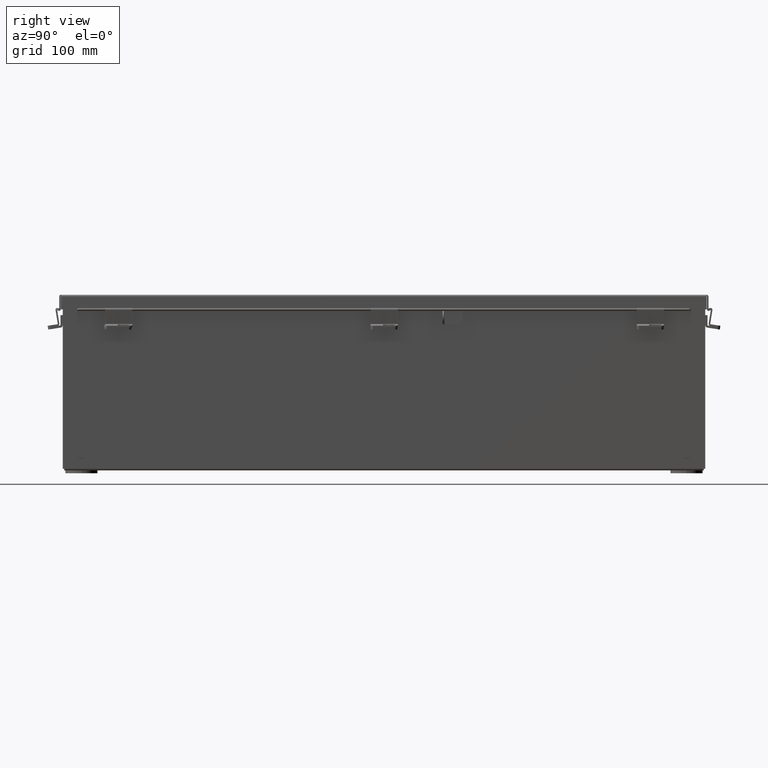
[diagram: clean part render]
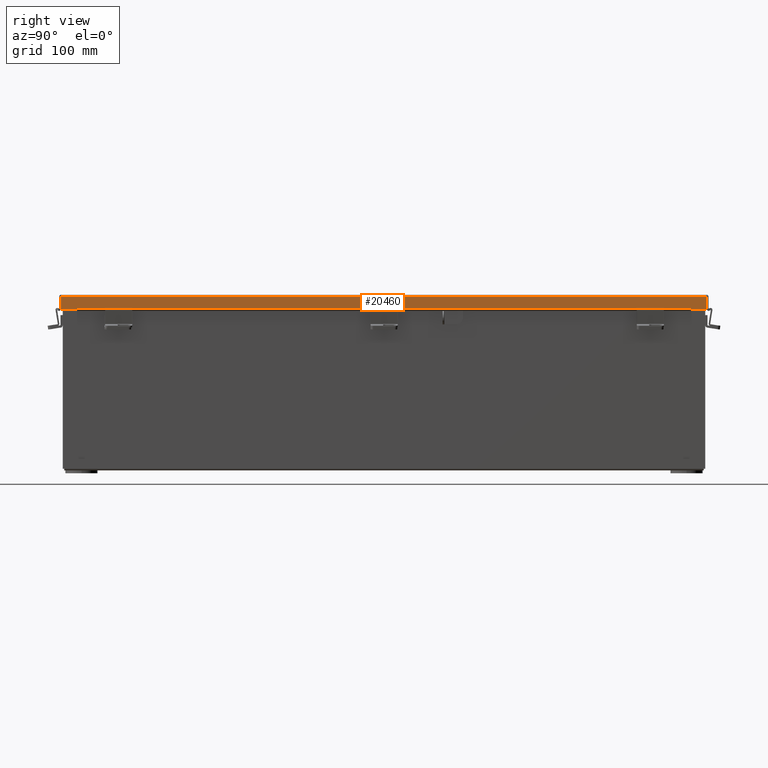
[diagram: same view with one face highlighted and labeled with its STEP entity id]
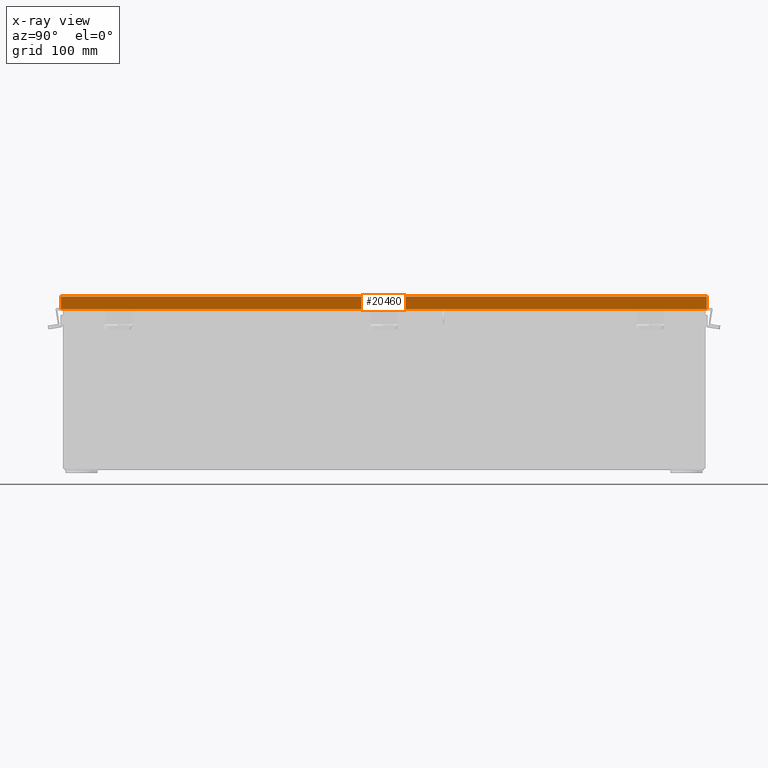
[diagram: x-ray of the same camera — body ghosted, the highlighted face saturated]
A machine part, right view. The second image highlights one B-rep face of the part: STEP entity #20460.
The next image is the same camera in x-ray: the body ghosted, the highlighted face saturated — about 0% of this face is hidden behind the body in this view.
In plain terms, the highlighted planar face has unit normal (-1, 0, -0).
Its self-contained STEP definition (entity closure, byte-faithful):
#557 = VERTEX_POINT ( 'NONE', #8641 ) ;
#665 = CARTESIAN_POINT ( 'NONE',  ( -4.156250000000025800, 15.15624999999997200, 0.01299999999999901400 ) ) ;
#748 = LINE ( 'NONE', #19440, #1879 ) ;
#1879 = VECTOR ( 'NONE', #12307, 39.37007874015748100 ) ;
#1965 = ORIENTED_EDGE ( 'NONE', *, *, #13209, .F. ) ;
#2416 = VECTOR ( 'NONE', #12020, 39.37007874015748100 ) ;
#2495 = DIRECTION ( 'NONE',  ( 1.752481305030150000E-013, -1.401985044024113200E-013, -1.000000000000000000 ) ) ;
#2799 = VERTEX_POINT ( 'NONE', #21058 ) ;
#2997 = DIRECTION ( 'NONE',  ( 1.000000000000000000, 1.232560026910515500E-029, 3.569293475308526100E-015 ) ) ;
#3274 = LINE ( 'NONE', #16144, #2416 ) ;
#3525 = ORIENTED_EDGE ( 'NONE', *, *, #13246, .T. ) ;
#3533 = CARTESIAN_POINT ( 'NONE',  ( -4.156250000000027500, -14.32447893218816200, 0.5967115427318782100 ) ) ;
#4991 = DIRECTION ( 'NONE',  ( 3.569293475308526100E-015, -6.034785924940716800E-029, -1.000000000000000000 ) ) ;
#5323 = CARTESIAN_POINT ( 'NONE',  ( -4.156250000000025800, -15.07447893218816000, -1.529834876451987200E-014 ) ) ;
#5588 = DIRECTION ( 'NONE',  ( -7.009925220120189700E-014, 6.034785924940715600E-029, 1.000000000000000000 ) ) ;
#6134 = VERTEX_POINT ( 'NONE', #18002 ) ;
#7750 = LINE ( 'NONE', #8148, #17610 ) ;
#8035 = ORIENTED_EDGE ( 'NONE', *, *, #13280, .F. ) ;
#8148 = CARTESIAN_POINT ( 'NONE',  ( -4.156250000000026600, 14.32447893218810500, 0.5967115427318793200 ) ) ;
#8554 = ORIENTED_EDGE ( 'NONE', *, *, #13520, .F. ) ;
#8641 = CARTESIAN_POINT ( 'NONE',  ( -4.156250000000027500, -14.32447893218816200, 0.6122999999999994000 ) ) ;
#8775 = LINE ( 'NONE', #23952, #23357 ) ;
#8957 = VERTEX_POINT ( 'NONE', #22025 ) ;
#10872 = CARTESIAN_POINT ( 'NONE',  ( -4.156250000000029300, 14.32447893218810500, 0.6122999999999994000 ) ) ;
#11502 = DIRECTION ( 'NONE',  ( -1.235011063668327800E-029, -1.000000000000000000, -6.034785924940740300E-029 ) ) ;
#11777 = PLANE ( 'NONE',  #19795 ) ;
#11873 = EDGE_LOOP ( 'NONE', ( #1965, #3525, #8035, #18031, #24731, #22885, #22307, #8554 ) ) ;
#12020 = DIRECTION ( 'NONE',  ( 1.235011063668327800E-029, 1.000000000000000000, 6.034785924940740300E-029 ) ) ;
#12307 = DIRECTION ( 'NONE',  ( -3.569293475308526100E-015, 6.034785924940715600E-029, 1.000000000000000000 ) ) ;
#13209 = EDGE_CURVE ( 'NONE', #23282, #15135, #24637, .T. ) ;
#13246 = EDGE_CURVE ( 'NONE', #23282, #6134, #3274, .T. ) ;
#13280 = EDGE_CURVE ( 'NONE', #2799, #6134, #748, .T. ) ;
#13316 = EDGE_CURVE ( 'NONE', #13647, #2799, #24766, .T. ) ;
#13324 = EDGE_CURVE ( 'NONE', #13647, #8957, #24175, .T. ) ;
#13358 = EDGE_CURVE ( 'NONE', #8957, #557, #8775, .T. ) ;
#13436 = EDGE_CURVE ( 'NONE', #17625, #557, #15217, .T. ) ;
#13520 = EDGE_CURVE ( 'NONE', #15135, #17625, #7750, .T. ) ;
#13647 = VERTEX_POINT ( 'NONE', #24333 ) ;
#13955 = CARTESIAN_POINT ( 'NONE',  ( -4.156250000000026600, -14.32447893218816200, 0.5967115427318782100 ) ) ;
#15135 = VERTEX_POINT ( 'NONE', #21879 ) ;
#15217 = LINE ( 'NONE', #13955, #19748 ) ;
#15284 = DIRECTION ( 'NONE',  ( -3.569293475308526100E-015, 6.034785924940715600E-029, 1.000000000000000000 ) ) ;
#16144 = CARTESIAN_POINT ( 'NONE',  ( -4.156250000000027500, 0.0000000000000000000, 0.6123000000000005100 ) ) ;
#16759 = VECTOR ( 'NONE', #22715, 39.37007874015748100 ) ;
#17290 = FACE_OUTER_BOUND ( 'NONE', #11873, .T. ) ;
#17610 = VECTOR ( 'NONE', #11502, 39.37007874015748100 ) ;
#17625 = VERTEX_POINT ( 'NONE', #3533 ) ;
#18002 = CARTESIAN_POINT ( 'NONE',  ( -4.156250000000027500, 15.07447893218810500, 0.6122999999999994000 ) ) ;
#18031 = ORIENTED_EDGE ( 'NONE', *, *, #13316, .F. ) ;
#18796 = CARTESIAN_POINT ( 'NONE',  ( -4.156250000000027500, 14.32447893218810500, 0.6122999999999994000 ) ) ;
#19440 = CARTESIAN_POINT ( 'NONE',  ( -4.156250000000025800, 15.07447893218810500, -1.092739197465705300E-015 ) ) ;
#19451 = VECTOR ( 'NONE', #2495, 39.37007874015748100 ) ;
#19748 = VECTOR ( 'NONE', #5588, 39.37007874015748100 ) ;
#19795 = AXIS2_PLACEMENT_3D ( 'NONE', #20969, #2997, #4991 ) ;
#20460 = ADVANCED_FACE ( 'NONE', ( #17290 ), #11777, .F. ) ;
#20969 = CARTESIAN_POINT ( 'NONE',  ( -4.156250000000025800, 0.0000000000000000000, -1.529834876451987200E-014 ) ) ;
#21058 = CARTESIAN_POINT ( 'NONE',  ( -4.156250000000025800, 15.07447893218810500, 0.01299999999999901400 ) ) ;
#21879 = CARTESIAN_POINT ( 'NONE',  ( -4.156250000000027500, 14.32447893218810400, 0.5967115427318793200 ) ) ;
#22025 = CARTESIAN_POINT ( 'NONE',  ( -4.156250000000027500, -15.07447893218816200, 0.6122999999999994000 ) ) ;
#22307 = ORIENTED_EDGE ( 'NONE', *, *, #13436, .F. ) ;
#22715 = DIRECTION ( 'NONE',  ( 1.223616637389996300E-029, 1.000000000000000000, 1.802456408196888900E-017 ) ) ;
#22885 = ORIENTED_EDGE ( 'NONE', *, *, #13358, .T. ) ;
#23282 = VERTEX_POINT ( 'NONE', #18796 ) ;
#23357 = VECTOR ( 'NONE', #24014, 39.37007874015748100 ) ;
#23550 = VECTOR ( 'NONE', #15284, 39.37007874015748100 ) ;
#23952 = CARTESIAN_POINT ( 'NONE',  ( -4.156250000000027500, 0.0000000000000000000, 0.6123000000000005100 ) ) ;
#24014 = DIRECTION ( 'NONE',  ( 1.235011063668327800E-029, 1.000000000000000000, 6.034785924940740300E-029 ) ) ;
#24175 = LINE ( 'NONE', #5323, #23550 ) ;
#24333 = CARTESIAN_POINT ( 'NONE',  ( -4.156250000000025800, -15.07447893218816200, 0.01299999999999901400 ) ) ;
#24637 = LINE ( 'NONE', #10872, #19451 ) ;
#24731 = ORIENTED_EDGE ( 'NONE', *, *, #13324, .T. ) ;
#24766 = LINE ( 'NONE', #665, #16759 ) ;